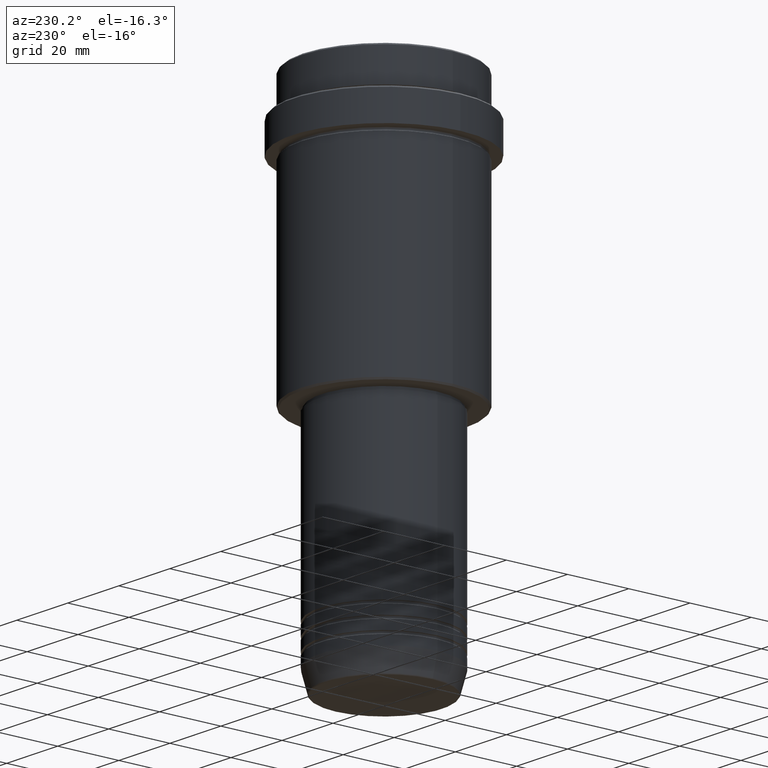
[diagram: clean part render]
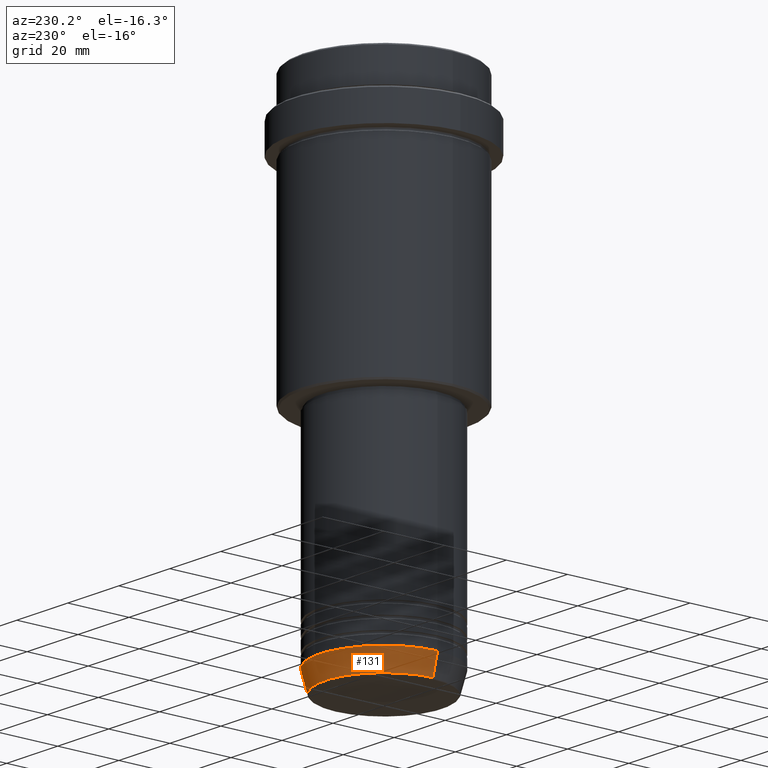
[diagram: same view with one face highlighted and labeled with its STEP entity id]
A machine part, auxiliary view. The second image highlights one B-rep face of the part: STEP entity #131.
In plain terms, the highlighted conical surface has half-angle 15 deg.
Its self-contained STEP definition (entity closure, byte-faithful):
#25 = EDGE_CURVE ( 'NONE', #1372, #358, #181, .T. ) ;
#33 = VERTEX_POINT ( 'NONE', #502 ) ;
#127 = CARTESIAN_POINT ( 'NONE',  ( -19.22365507213718416, 2.462988521705000261E-15, -162.6294095225512706 ) ) ;
#131 = ADVANCED_FACE ( 'NONE', ( #294 ), #1255, .T. ) ;
#135 = DIRECTION ( 'NONE',  ( 0.2588190451025213501, 0.000000000000000000, 0.9659258262890680902 ) ) ;
#177 = DIRECTION ( 'NONE',  ( 1.000000000000000000, 0.000000000000000000, 0.000000000000000000 ) ) ;
#181 = CIRCLE ( 'NONE', #1051, 19.22365507213718416 ) ;
#199 = CARTESIAN_POINT ( 'NONE',  ( 0.000000000000000000, 0.000000000000000000, -156.0000000000000000 ) ) ;
#213 = AXIS2_PLACEMENT_3D ( 'NONE', #497, #1385, #177 ) ;
#222 = EDGE_CURVE ( 'NONE', #765, #33, #390, .T. ) ;
#270 = ORIENTED_EDGE ( 'NONE', *, *, #222, .F. ) ;
#294 = FACE_OUTER_BOUND ( 'NONE', #879, .T. ) ;
#301 = CARTESIAN_POINT ( 'NONE',  ( 0.000000000000000000, 0.000000000000000000, -162.6294095225512706 ) ) ;
#341 = LINE ( 'NONE', #573, #968 ) ;
#358 = VERTEX_POINT ( 'NONE', #127 ) ;
#369 = AXIS2_PLACEMENT_3D ( 'NONE', #199, #1065, #962 ) ;
#390 = CIRCLE ( 'NONE', #369, 21.00000000000000000 ) ;
#452 = CARTESIAN_POINT ( 'NONE',  ( 21.00000000000000000, 0.000000000000000000, -156.0000000000000000 ) ) ;
#497 = CARTESIAN_POINT ( 'NONE',  ( 0.000000000000000000, 0.000000000000000000, -156.0000000000000000 ) ) ;
#502 = CARTESIAN_POINT ( 'NONE',  ( -21.00000000000000000, 2.571758278209441661E-15, -156.0000000000000000 ) ) ;
#573 = CARTESIAN_POINT ( 'NONE',  ( 21.00000000000000000, 0.000000000000000000, -156.0000000000000000 ) ) ;
#583 = ORIENTED_EDGE ( 'NONE', *, *, #758, .F. ) ;
#619 = DIRECTION ( 'NONE',  ( -0.000000000000000000, -0.000000000000000000, 1.000000000000000000 ) ) ;
#721 = ORIENTED_EDGE ( 'NONE', *, *, #25, .T. ) ;
#735 = LINE ( 'NONE', #817, #994 ) ;
#758 = EDGE_CURVE ( 'NONE', #1372, #765, #341, .T. ) ;
#765 = VERTEX_POINT ( 'NONE', #452 ) ;
#817 = CARTESIAN_POINT ( 'NONE',  ( -21.00000000000000000, 2.571758278209441661E-15, -156.0000000000000000 ) ) ;
#833 = ORIENTED_EDGE ( 'NONE', *, *, #1351, .T. ) ;
#847 = DIRECTION ( 'NONE',  ( -0.2588190451025213501, 3.169619151431772337E-17, 0.9659258262890680902 ) ) ;
#879 = EDGE_LOOP ( 'NONE', ( #721, #833, #270, #583 ) ) ;
#962 = DIRECTION ( 'NONE',  ( 1.000000000000000000, 0.000000000000000000, 0.000000000000000000 ) ) ;
#968 = VECTOR ( 'NONE', #135, 1000.000000000000000 ) ;
#994 = VECTOR ( 'NONE', #847, 1000.000000000000000 ) ;
#1051 = AXIS2_PLACEMENT_3D ( 'NONE', #301, #619, #1069 ) ;
#1065 = DIRECTION ( 'NONE',  ( -0.000000000000000000, -0.000000000000000000, 1.000000000000000000 ) ) ;
#1069 = DIRECTION ( 'NONE',  ( 1.000000000000000000, 0.000000000000000000, 0.000000000000000000 ) ) ;
#1255 = CONICAL_SURFACE ( 'NONE', #213, 21.00000000000000000, 0.2617993877991500740 ) ;
#1351 = EDGE_CURVE ( 'NONE', #358, #33, #735, .T. ) ;
#1372 = VERTEX_POINT ( 'NONE', #1391 ) ;
#1385 = DIRECTION ( 'NONE',  ( -0.000000000000000000, -0.000000000000000000, 1.000000000000000000 ) ) ;
#1391 = CARTESIAN_POINT ( 'NONE',  ( 19.22365507213718416, 0.000000000000000000, -162.6294095225512706 ) ) ;